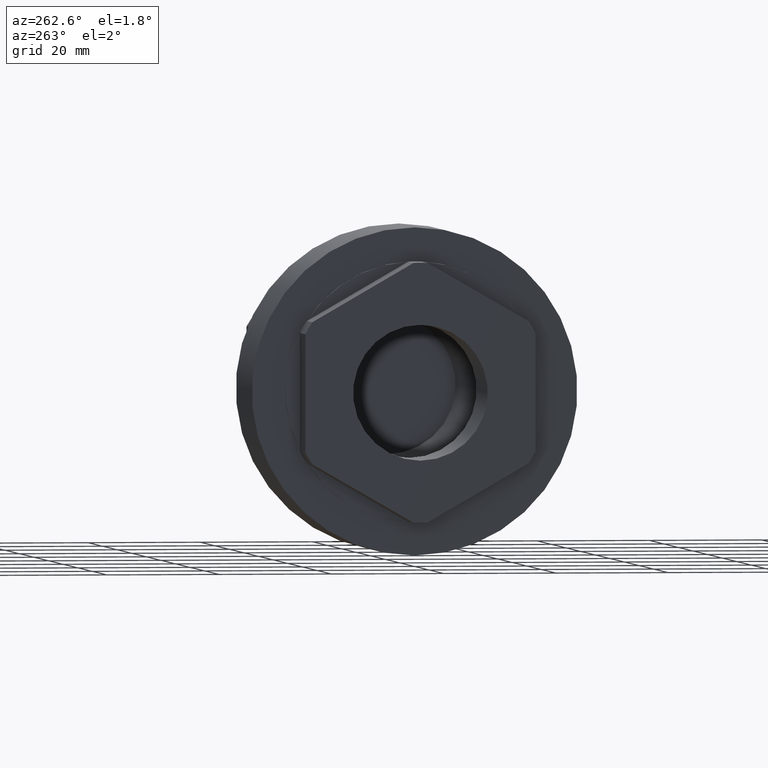
[diagram: clean part render]
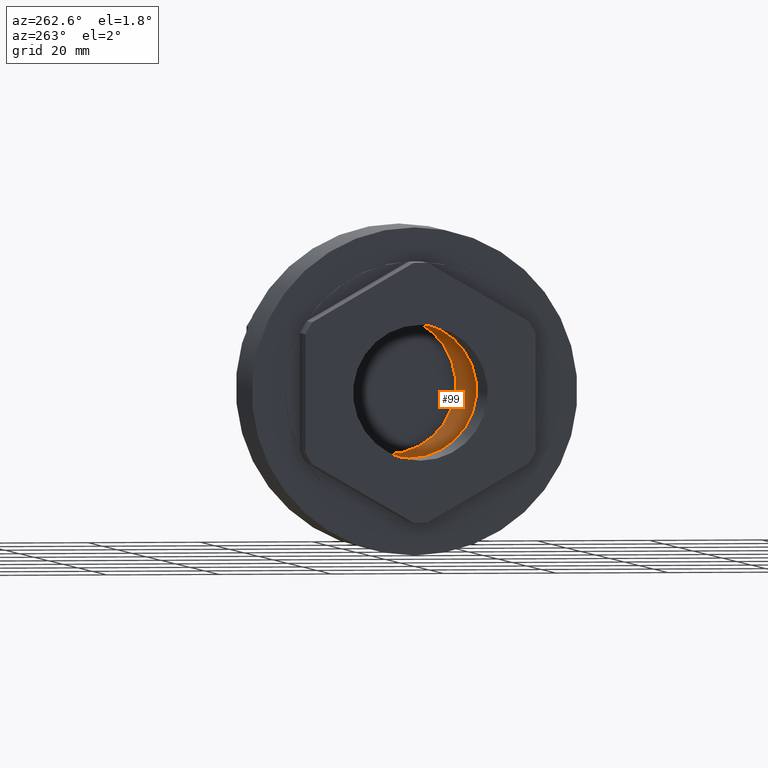
[diagram: same view with one face highlighted and labeled with its STEP entity id]
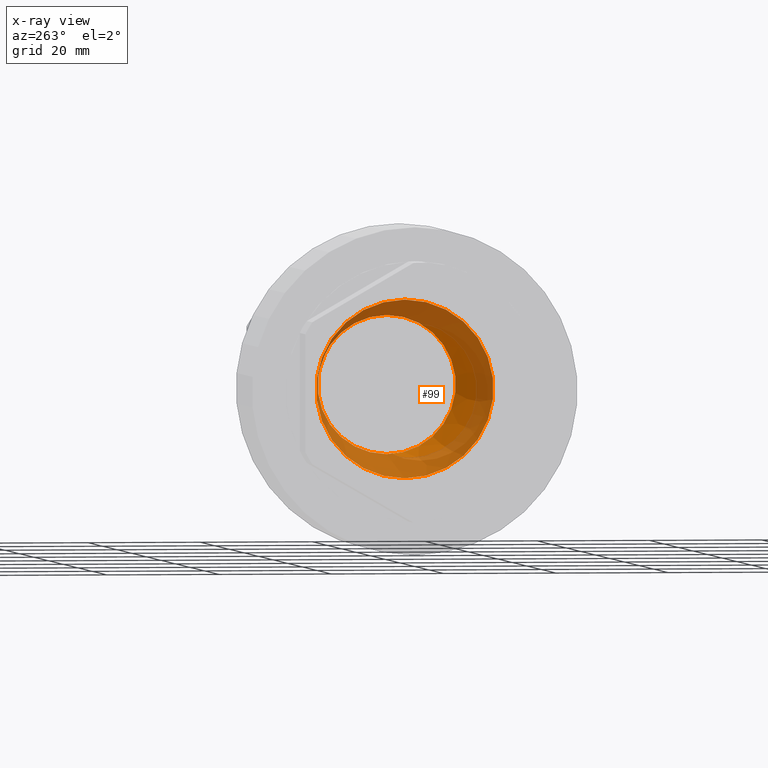
[diagram: x-ray of the same camera — body ghosted, the highlighted face saturated]
A machine part, auxiliary view. The second image highlights one B-rep face of the part: STEP entity #99.
The next image is the same camera in x-ray: the body ghosted, the highlighted face saturated — about 72% of this face is hidden behind the body in this view.
In plain terms, the highlighted conical surface has half-angle 8 deg.
Its self-contained STEP definition (entity closure, byte-faithful):
#99 = ADVANCED_FACE( '', ( #204, #205 ), #206, .F. );
#204 = FACE_OUTER_BOUND( '', #303, .T. );
#205 = FACE_BOUND( '', #304, .T. );
#206 = CONICAL_SURFACE( '', #305, 12.3000000000000, 0.139626340159546 );
#303 = EDGE_LOOP( '', ( #509 ) );
#304 = EDGE_LOOP( '', ( #510 ) );
#305 = AXIS2_PLACEMENT_3D( '', #511, #512, #513 );
#509 = ORIENTED_EDGE( '', *, *, #583, .F. );
#510 = ORIENTED_EDGE( '', *, *, #601, .T. );
#511 = CARTESIAN_POINT( '', ( 38.3031897014172, 0.000000000000000, 0.000000000000000 ) );
#512 = DIRECTION( '', ( -1.00000000000000, 0.000000000000000, -0.000000000000000 ) );
#513 = DIRECTION( '', ( 0.000000000000000, 0.000000000000000, 1.00000000000000 ) );
#583 = EDGE_CURVE( '', #698, #698, #699, .T. );
#601 = EDGE_CURVE( '', #717, #717, #718, .T. );
#698 = VERTEX_POINT( '', #837 );
#699 = CIRCLE( '', #838, 15.7954808572561 );
#717 = VERTEX_POINT( '', #862 );
#718 = CIRCLE( '', #863, 12.3000000000000 );
#837 = CARTESIAN_POINT( '', ( 13.4315510445241, 0.000000000000000, -15.7954808572561 ) );
#838 = AXIS2_PLACEMENT_3D( '', #948, #949, #950 );
#862 = CARTESIAN_POINT( '', ( 38.3031897014172, 0.000000000000000, -12.3000000000000 ) );
#863 = AXIS2_PLACEMENT_3D( '', #963, #964, #965 );
#948 = CARTESIAN_POINT( '', ( 13.4315510445241, 0.000000000000000, 0.000000000000000 ) );
#949 = DIRECTION( '', ( 1.00000000000000, 0.000000000000000, 0.000000000000000 ) );
#950 = DIRECTION( '', ( 0.000000000000000, 0.000000000000000, -1.00000000000000 ) );
#963 = CARTESIAN_POINT( '', ( 38.3031897014172, 0.000000000000000, 0.000000000000000 ) );
#964 = DIRECTION( '', ( 1.00000000000000, 0.000000000000000, 0.000000000000000 ) );
#965 = DIRECTION( '', ( 0.000000000000000, 0.000000000000000, -1.00000000000000 ) );